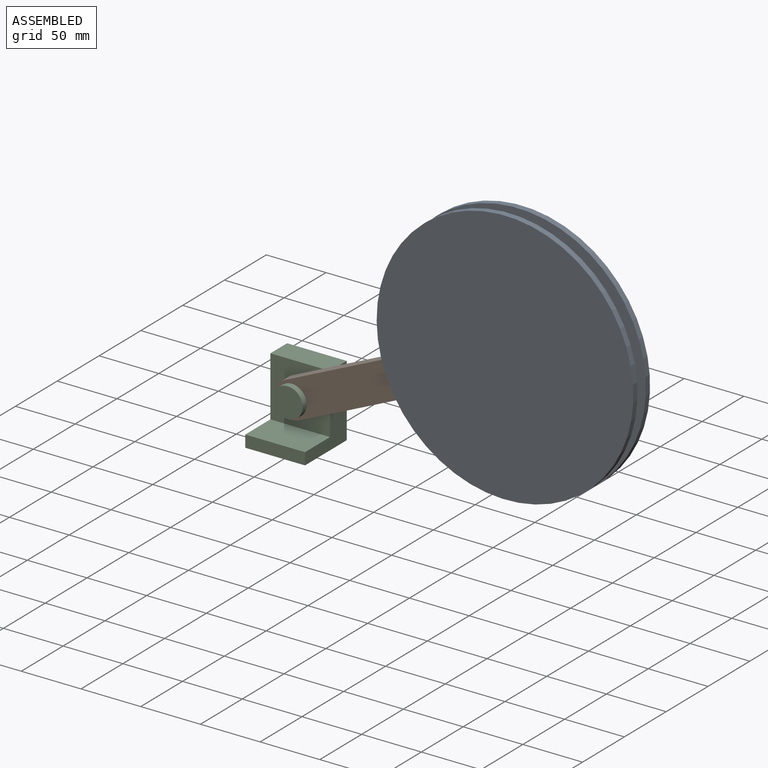
[diagram: assembled view]
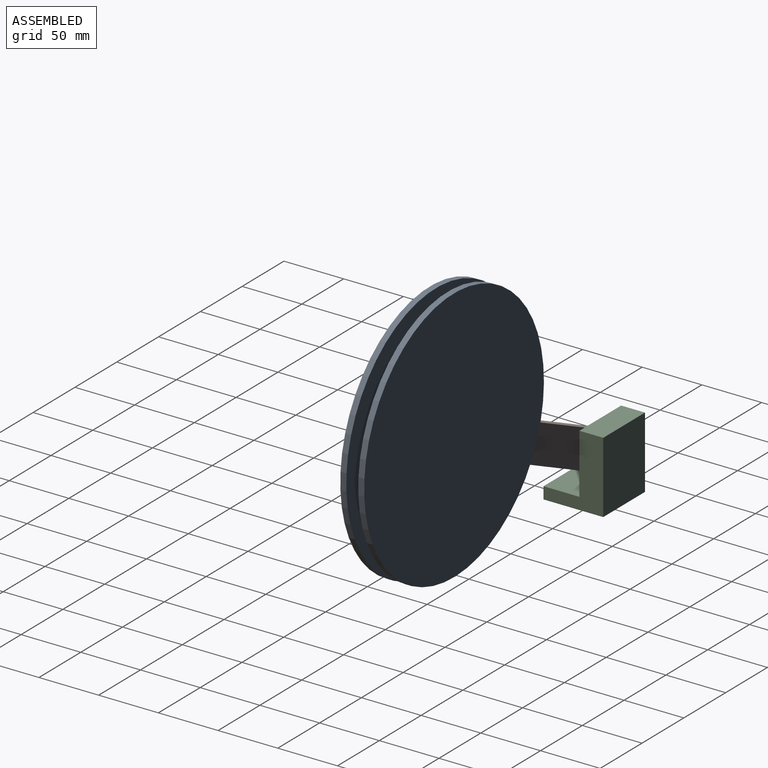
[diagram: assembled view, second angle]
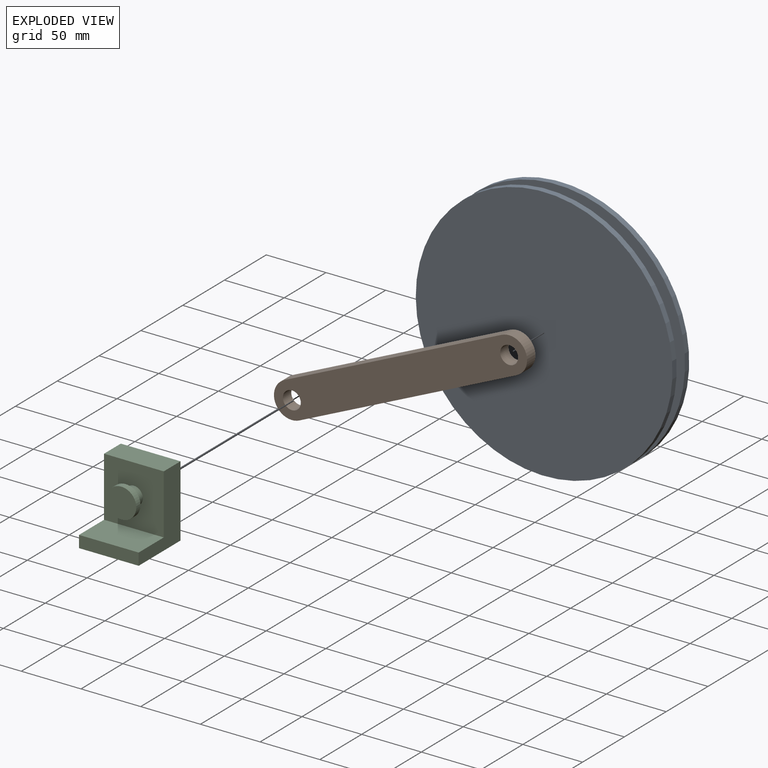
[diagram: exploded view]
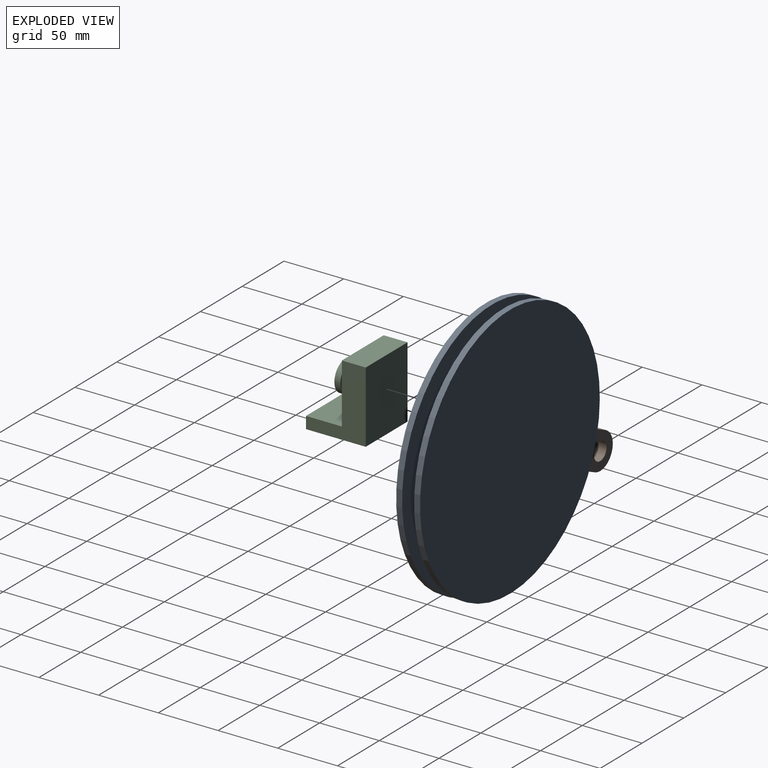
[diagram: exploded view, second angle]
ASSEMBLY  parts=3 mates=2
PART A: 7 faces, bbox 215x20x215 mm
  f0: cylinder r=7.5mm len=15mm, axis (0,1,0), area 471.2mm2, adj f3,f6
  f1: cylinder r=107.5mm len=215mm, axis (0,1,0), area 3377.2mm2, adj f2,f3
  f2: plane 215x215mm, normal (0,1,0), area 36305mm2, adj f1
  f3: plane 215x215mm, normal (0,-1,0), area 36128.3mm2, adj f0,f1
  f4: cylinder r=107.5mm len=215mm, axis (0,1,0), area 3377.2mm2, adj f5,f6
  f5: plane 215x215mm, normal (0,-1,0), area 36305mm2, adj f4
  f6: plane 215x215mm, normal (0,1,0), area 36128.3mm2, adj f0,f4
PART B: 8 faces, bbox 30x10x230 mm
  f0: plane 200x10mm, normal (-1,0,0), area 2000mm2, adj f1,f4,f6,f7
  f1: cylinder r=15mm len=30mm, axis (0,1,0), area 471.2mm2, adj f0,f2,f6,f7
  f2: plane 200x10mm, normal (1,0,0), area 2000mm2, adj f1,f4,f6,f7
  f3: cylinder r=7.5mm len=15mm, axis (0,1,0), area 471.2mm2, adj f6,f7
  f4: cylinder r=15mm len=30mm, axis (0,1,0), area 471.2mm2, adj f0,f2,f6,f7
  f5: cylinder r=7.5mm len=15mm, axis (0,1,0), area 471.2mm2, adj f6,f7
  f6: plane 230x30mm, normal (0,-1,0), area 6353.4mm2, adj f0,f1,f2,f3,f4,f5
  f7: plane 230x30mm, normal (0,1,0), area 6353.4mm2, adj f0,f1,f2,f3,f4,f5
PART C: 12 faces, bbox 50x50x60 mm
  f0: cylinder r=7.5mm len=15mm, axis (0,1,0), area 471.2mm2, adj f1,f11
  f1: plane 50x50mm, normal (0,-1,0), area 2323.3mm2, adj f0,f2,f3,f4,f8
  f2: plane 60x50mm, normal (1,0,0), area 1500mm2, adj f1,f4,f5,f6,f7,f8
  f3: plane 60x50mm, normal (-1,0,0), area 1500mm2, adj f1,f4,f5,f6,f7,f8
  f4: plane 50x20mm, normal (0,0,1), area 1000mm2, adj f1,f2,f3,f6
  f5: plane 50x50mm, normal (0,0,-1), area 2500mm2, adj f2,f3,f6,f7
  f6: plane 60x50mm, normal (0,1,0), area 3000mm2, adj f2,f3,f4,f5
  f7: plane 50x10mm, normal (0,-1,0), area 500mm2, adj f2,f3,f5,f8
  f8: plane 50x30mm, normal (0,0,1), area 1500mm2, adj f1,f2,f3,f7
  f9: cylinder r=12.5mm len=25mm, axis (0,1,0), area 392.7mm2, adj f10,f11
  f10: plane 25x25mm, normal (0,-1,0), area 490.9mm2, adj f9
  f11: plane 25x25mm, normal (0,1,0), area 314.2mm2, adj f0,f9
PLACE A rot(axis=(0,-1,0),24.5deg) t=(279.42,0,-95.97)mm
PLACE B rot(axis=(0,1,0),65.5deg) t=(-31.85,0,20.49)mm
PLACE C at identity fixed
MATE revolute A.f0 <-> B.f3  axis (0,-1,0) through (182.01,5,117.9)mm
MATE revolute C.f0 <-> B.f1  axis (0,-1,0) through (0,5,35)mm
